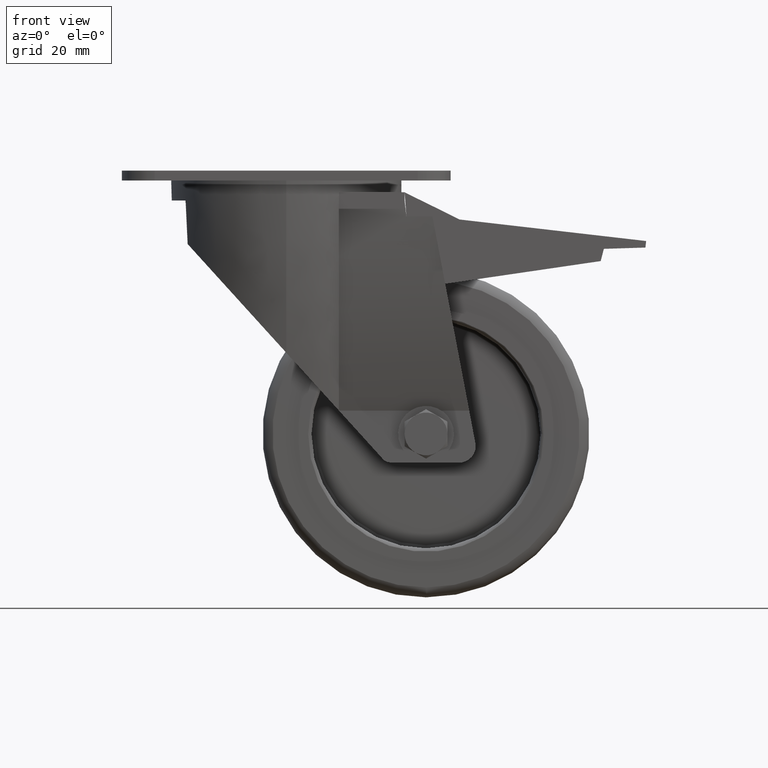
[diagram: clean part render]
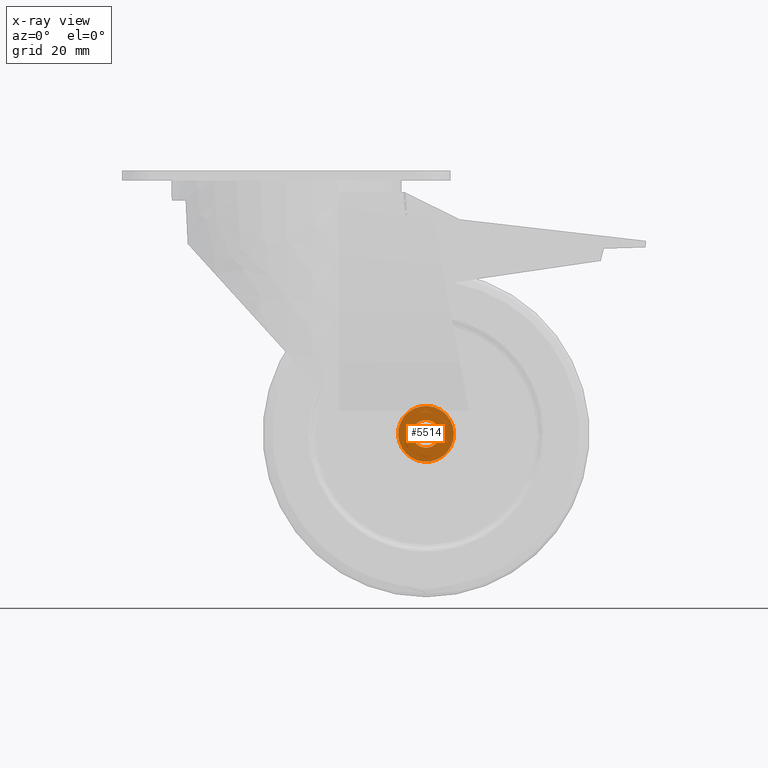
[diagram: x-ray — body ghosted, one internal face saturated and labeled with its STEP entity id]
A machine part, front view, then the same camera in x-ray: the body is ghosted and one INTERNAL B-rep face — a face not visible from any outside direction — is saturated and labeled: STEP entity #5514.
In plain terms, the highlighted planar face has unit normal (0, -1, 0).
Its self-contained STEP definition (entity closure, byte-faithful):
#5408=CARTESIAN_POINT('',(-15.634289223685414,19.929942680698147,-82.541549933489193));
#5409=VERTEX_POINT('',#5408);
#5416=CARTESIAN_POINT('',(0.634268443746902,19.929942680698147,-77.608596313047428));
#5417=VERTEX_POINT('',#5416);
#5418=CARTESIAN_POINT('',(-7.500010389969243,19.929942680698147,-80.075073123268339));
#5419=DIRECTION('',(1.277731E-016,-1.0,1.181029E-016));
#5420=DIRECTION('',(-0.956973980437194,-1.565459E-016,-0.290173742378930));
#5421=AXIS2_PLACEMENT_3D('',#5418,#5419,#5420);
#5422=CIRCLE('',#5421,8.500000000000000);
#5423=EDGE_CURVE('',#5417,#5409,#5422,.T.);
#5425=CARTESIAN_POINT('',(-7.500010389969243,19.929942680698147,-80.075073123268339));
#5426=DIRECTION('',(1.277731E-016,-1.0,1.181029E-016));
#5427=DIRECTION('',(-0.956973980437194,-1.565459E-016,-0.290173742378930));
#5428=AXIS2_PLACEMENT_3D('',#5425,#5426,#5427);
#5429=CIRCLE('',#5428,8.500000000000000);
#5430=EDGE_CURVE('',#5409,#5417,#5429,.T.);
#5459=CARTESIAN_POINT('',(-11.519300925277207,19.929942680698147,-81.293802785913556));
#5460=VERTEX_POINT('',#5459);
#5467=CARTESIAN_POINT('',(-3.480719854661333,19.929942680698147,-78.856343460623080));
#5468=VERTEX_POINT('',#5467);
#5469=CARTESIAN_POINT('',(-7.500010389969243,19.929942680698147,-80.075073123268339));
#5470=DIRECTION('',(-1.277731E-016,1.0,-1.181029E-016));
#5471=DIRECTION('',(-0.956973980437194,-1.565459E-016,-0.290173742378930));
#5472=AXIS2_PLACEMENT_3D('',#5469,#5470,#5471);
#5473=CIRCLE('',#5472,4.199999809265137);
#5474=EDGE_CURVE('',#5468,#5460,#5473,.T.);
#5476=CARTESIAN_POINT('',(-7.500010389969243,19.929942680698147,-80.075073123268339));
#5477=DIRECTION('',(-1.277731E-016,1.0,-1.181029E-016));
#5478=DIRECTION('',(-0.956973980437194,-1.565459E-016,-0.290173742378930));
#5479=AXIS2_PLACEMENT_3D('',#5476,#5477,#5478);
#5480=CIRCLE('',#5479,4.199999809265137);
#5481=EDGE_CURVE('',#5460,#5468,#5480,.T.);
#5501=CARTESIAN_POINT('',(0.982305572962787,19.929942680698147,-64.210200206931347));
#5502=DIRECTION('',(0.0,-1.0,0.0));
#5503=DIRECTION('',(-0.956973980437194,0.0,-0.290173742378930));
#5504=AXIS2_PLACEMENT_3D('',#5501,#5502,#5503);
#5505=PLANE('',#5504);
#5506=ORIENTED_EDGE('',*,*,#5430,.T.);
#5507=ORIENTED_EDGE('',*,*,#5423,.T.);
#5508=EDGE_LOOP('',(#5506,#5507));
#5509=FACE_OUTER_BOUND('',#5508,.T.);
#5510=ORIENTED_EDGE('',*,*,#5481,.T.);
#5511=ORIENTED_EDGE('',*,*,#5474,.T.);
#5512=EDGE_LOOP('',(#5510,#5511));
#5513=FACE_BOUND('',#5512,.T.);
#5514=ADVANCED_FACE('',(#5509,#5513),#5505,.T.);